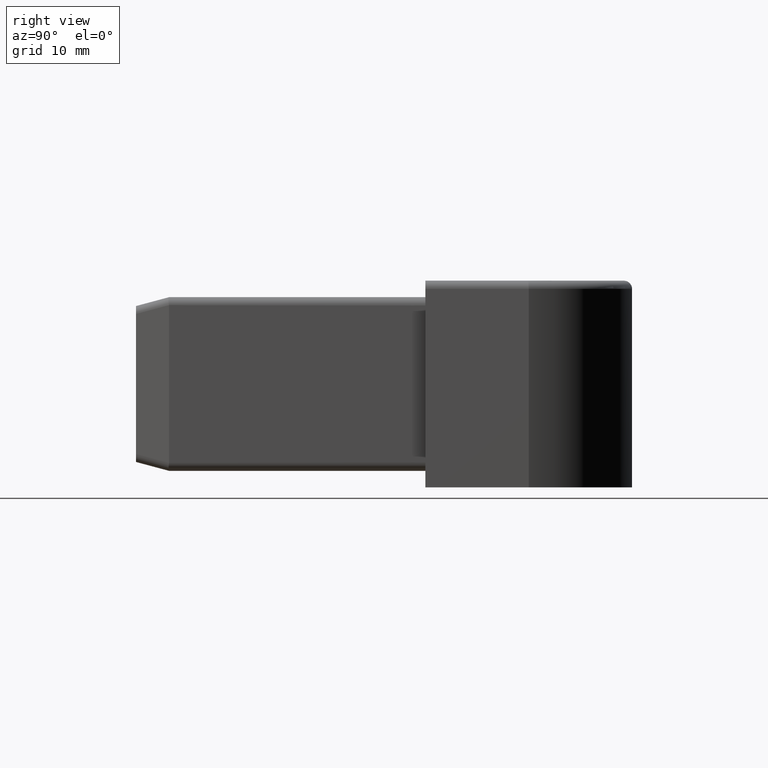
[diagram: clean part render]
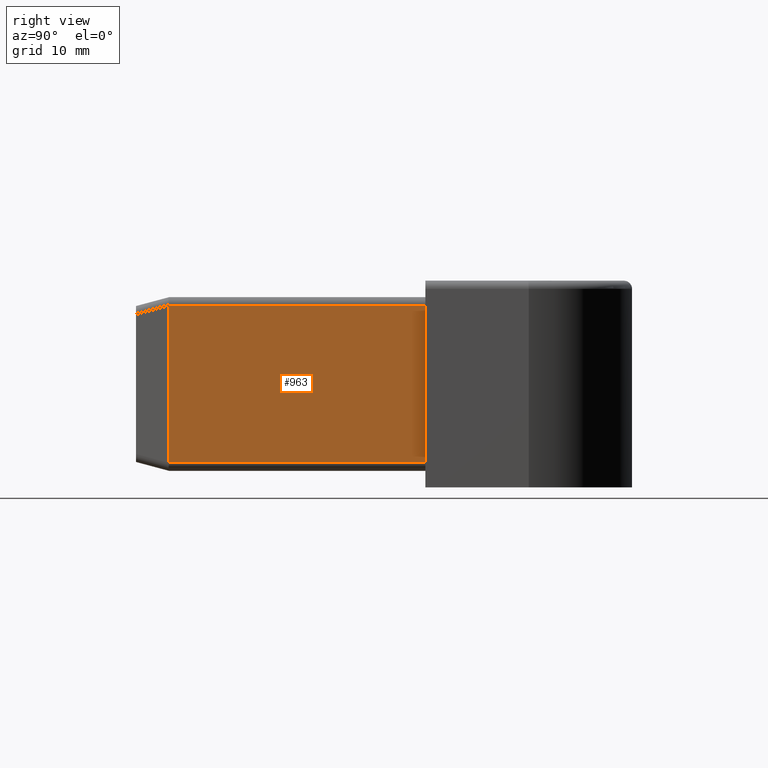
[diagram: same view with one face highlighted and labeled with its STEP entity id]
A machine part, right view. The second image highlights one B-rep face of the part: STEP entity #963.
In plain terms, the highlighted planar face has unit normal (1, 0, -0).
Its self-contained STEP definition (entity closure, byte-faithful):
#35=PLANE('',#1072);
#94=FACE_OUTER_BOUND('',#148,.T.);
#148=EDGE_LOOP('',(#783,#784,#785,#786));
#254=LINE('',#1563,#349);
#261=LINE('',#1581,#356);
#263=LINE('',#1587,#358);
#264=LINE('',#1588,#359);
#349=VECTOR('',#1272,10.);
#356=VECTOR('',#1287,10.);
#358=VECTOR('',#1293,10.);
#359=VECTOR('',#1294,10.);
#455=VERTEX_POINT('',#1560);
#456=VERTEX_POINT('',#1562);
#463=VERTEX_POINT('',#1580);
#465=VERTEX_POINT('',#1586);
#572=EDGE_CURVE('',#455,#456,#254,.T.);
#581=EDGE_CURVE('',#456,#463,#261,.T.);
#584=EDGE_CURVE('',#465,#455,#263,.T.);
#585=EDGE_CURVE('',#463,#465,#264,.T.);
#783=ORIENTED_EDGE('',*,*,#572,.F.);
#784=ORIENTED_EDGE('',*,*,#584,.F.);
#785=ORIENTED_EDGE('',*,*,#585,.F.);
#786=ORIENTED_EDGE('',*,*,#581,.F.);
#963=ADVANCED_FACE('',(#94),#35,.T.);
#1072=AXIS2_PLACEMENT_3D('',#1585,#1291,#1292);
#1272=DIRECTION('',(0.,-1.,0.));
#1287=DIRECTION('',(2.11471052309554E-16,0.,1.));
#1291=DIRECTION('center_axis',(1.,0.,-2.11471052309554E-16));
#1292=DIRECTION('ref_axis',(2.11471052309554E-16,0.,1.));
#1293=DIRECTION('',(-2.11471052309554E-16,0.,-1.));
#1294=DIRECTION('',(0.,1.,0.));
#1560=CARTESIAN_POINT('',(10.5,-12.5,-9.5));
#1562=CARTESIAN_POINT('',(10.5,-43.5,-9.5));
#1563=CARTESIAN_POINT('',(10.5,-12.5,-9.5));
#1580=CARTESIAN_POINT('',(10.5,-43.5,9.5));
#1581=CARTESIAN_POINT('',(10.5,-43.5,-5.25));
#1585=CARTESIAN_POINT('Origin',(10.5,-12.5,-10.5));
#1586=CARTESIAN_POINT('',(10.5,-12.5,9.5));
#1587=CARTESIAN_POINT('',(10.5,-12.5,-5.25));
#1588=CARTESIAN_POINT('',(10.5,-12.5,9.5));